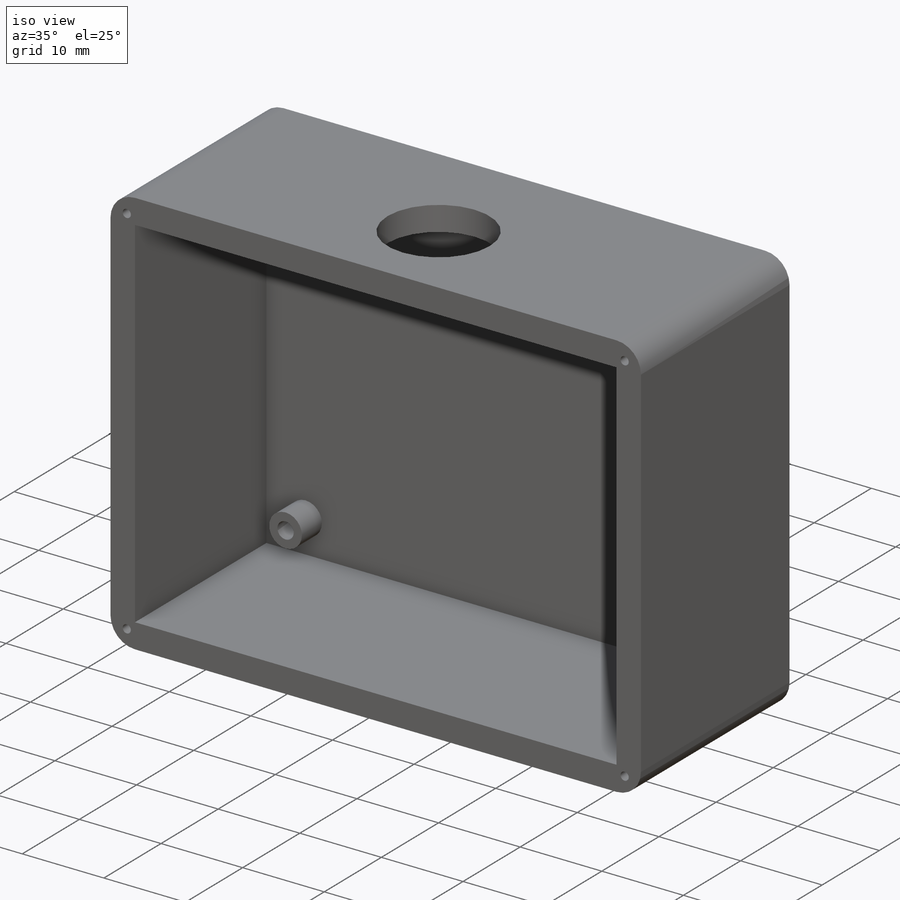
[diagram: iso view]
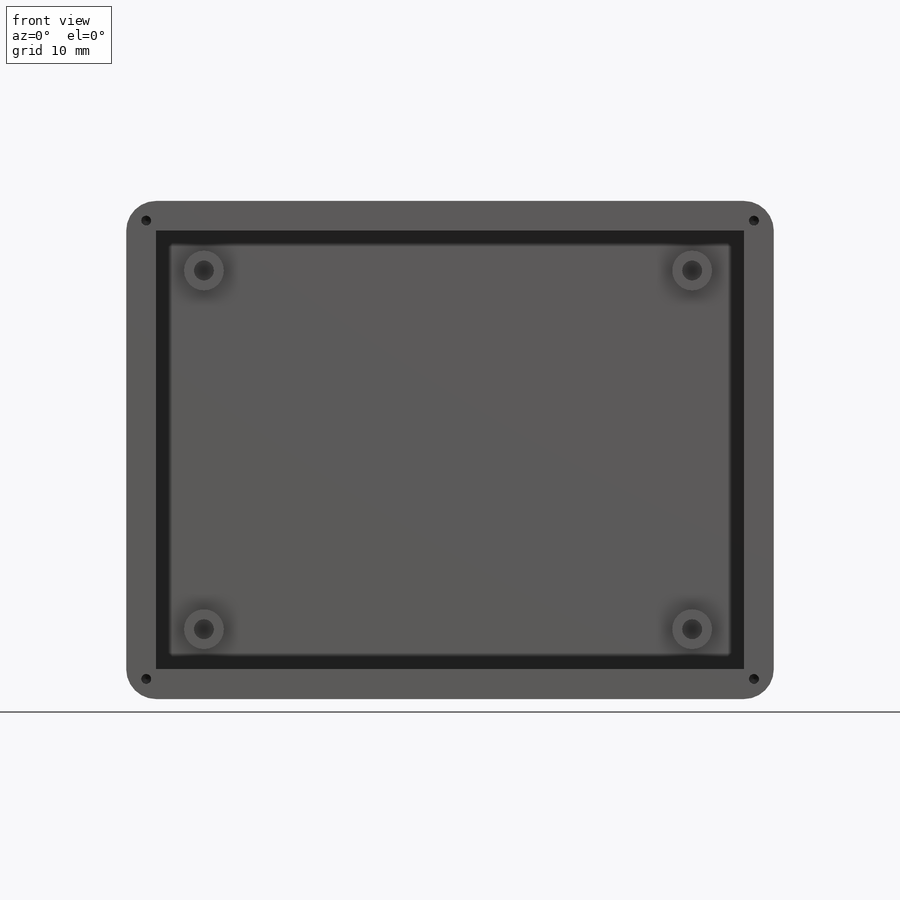
[diagram: front view]
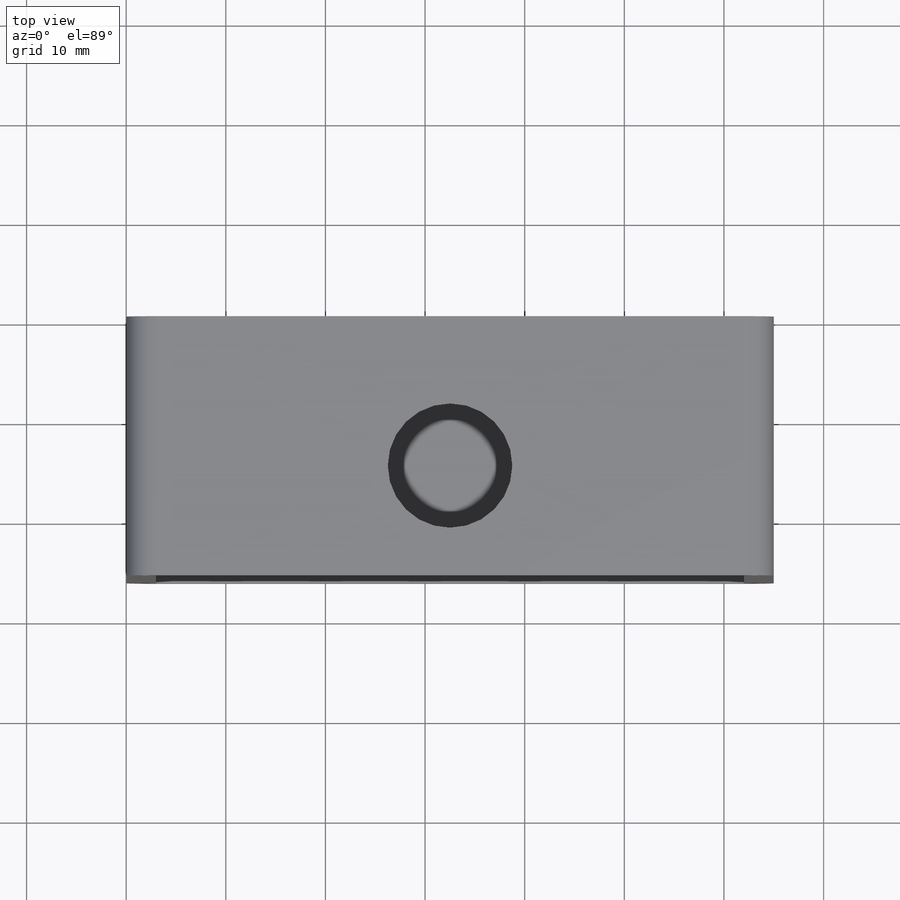
[diagram: top view]
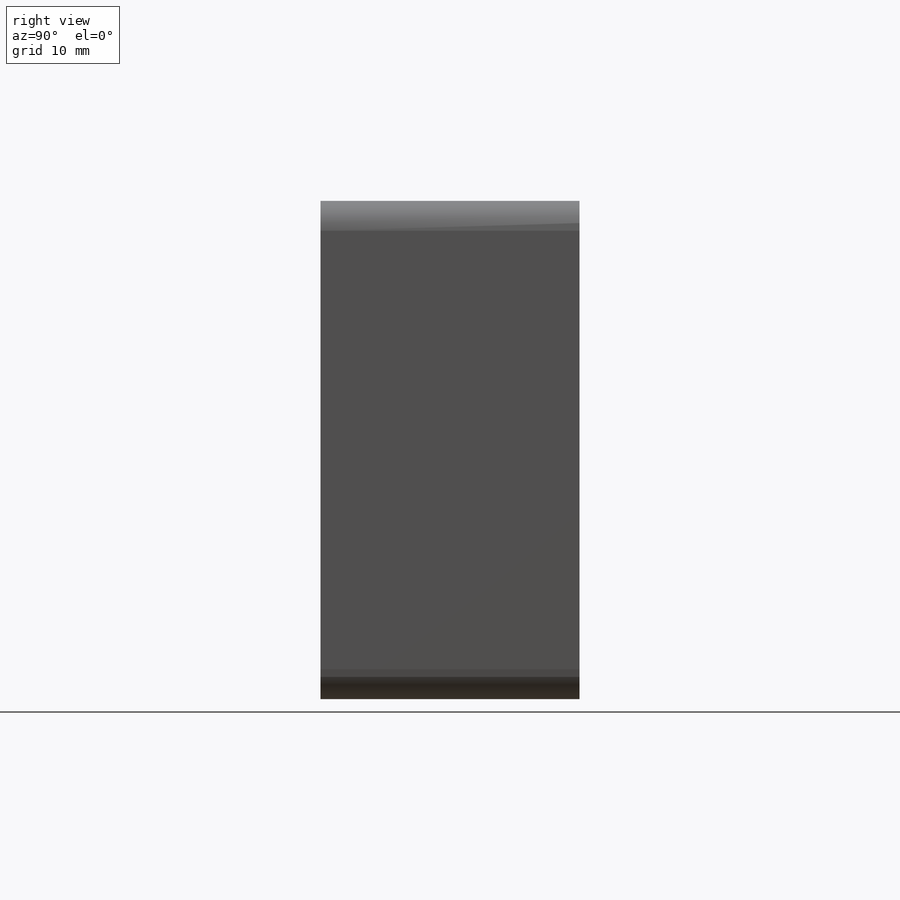
[diagram: right view]
SOLIDWORKS PART (.sldprt)
format: sldprt  version: not decoded by parser v0  size: 267,776 bytes
history: native  units: mm
features: sketch x6, plane x3, extrude x3, material x1, cut_extrude x1, fillet x1, hole x1 (+9 scaffold rows collapsed)
feature tree (25):
  scaffold x9  (default folders/planes/origin — collapsed)
  material  "Material <nicht festgelegt>"
  plane  "Ebene vorne"
  plane  "Ebene oben"
  plane  "Ebene rechts"
  sketch  "Skizze1"  dims[D1=50.0mm D2=65.0mm]
  extrude  "Aufsatz-Linear austragen1"  Depth=3mm
  sketch  "Skizze2"  dims[D1=3.0mm]
  extrude  "Aufsatz-Linear austragen2"  Depth=23mm
  sketch  "Skizze4"  dims[D1=49.0mm D2=36.0mm D3=4.0mm D4=36.0mm D5=49.0mm D6=1.0mm]
  extrude  "Aufsatz-Linear austragen3"  Depth=3.5mm
  sketch  "Skizze5"  dims[D1=15.0mm D2=0.0mm]
  cut_extrude  "Schnitt-Linear austragen1"  [1 undecoded]
  fillet  "Verrundung1"  Radius=3mm
  hole  "Ø1.0 (1) Durchmesser Bohrung1"  Diameter=1mm Depth=15mm
  sketch  "Skizze7"  dims[D1=2.0mm D2=2.0mm D3=2.0mm D4=2.0mm D5=2.0mm D6=2.0mm D7=2.0mm D8=2.0mm]
  sketch  "Skizze6"  dims[hole-wizard template sketch: 46 standard entries collapsed; hole parameters kept: c15.Bohrerdurchmesser=1.0mm c15.Bohrungstiefe=15.0mm c15.D3=~14.816244mm c15.Spitzenwinkel=118.0deg]
decode coverage: 11 of 12 modeling features carry decoded parameters
note: ~ marks probable driven/reference dimensions
note: 1 parameter value undecoded
note: suppression state not decoded; provenance and decode notes live in map.json
